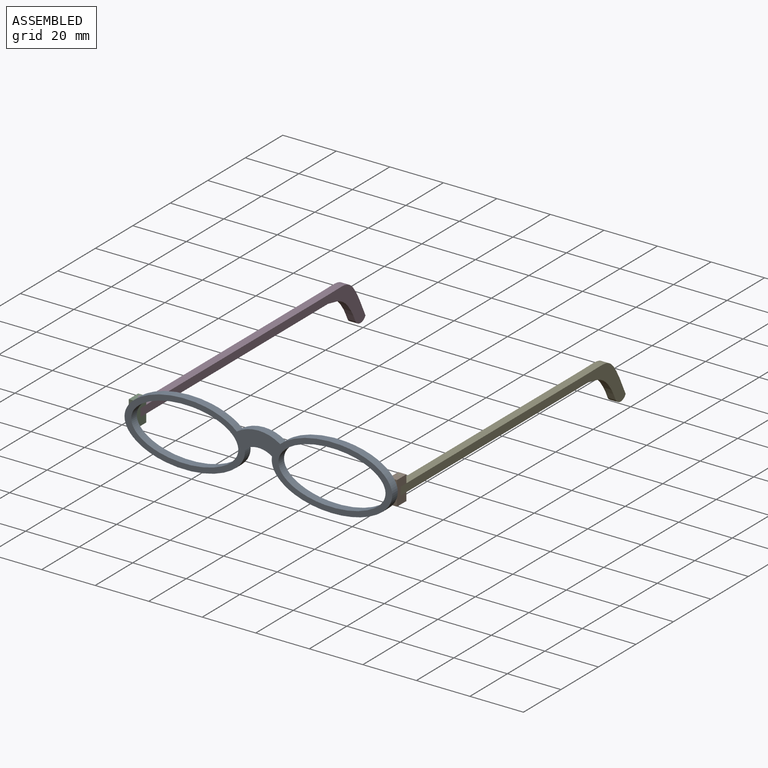
[diagram: assembled view]
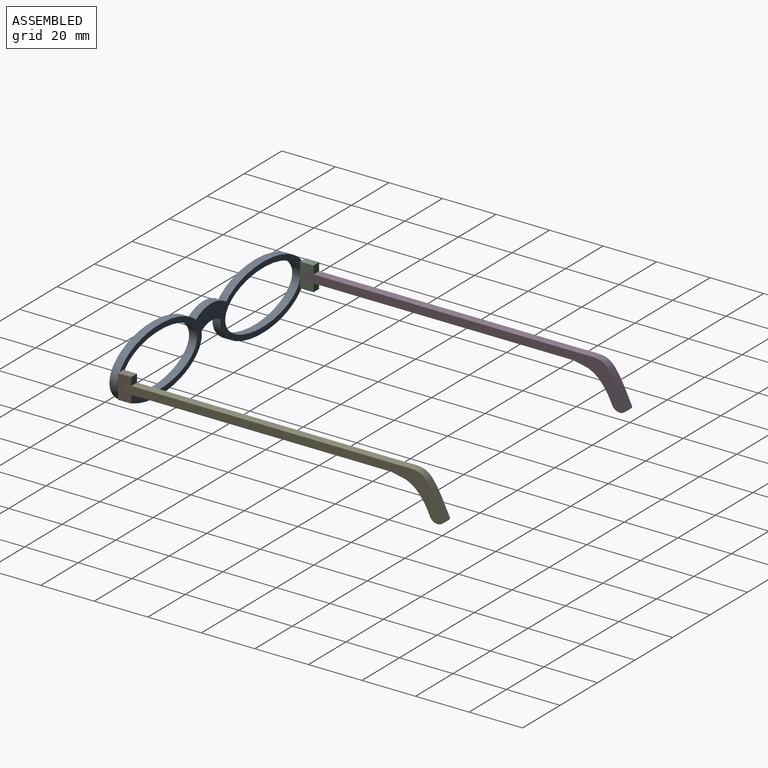
[diagram: assembled view, second angle]
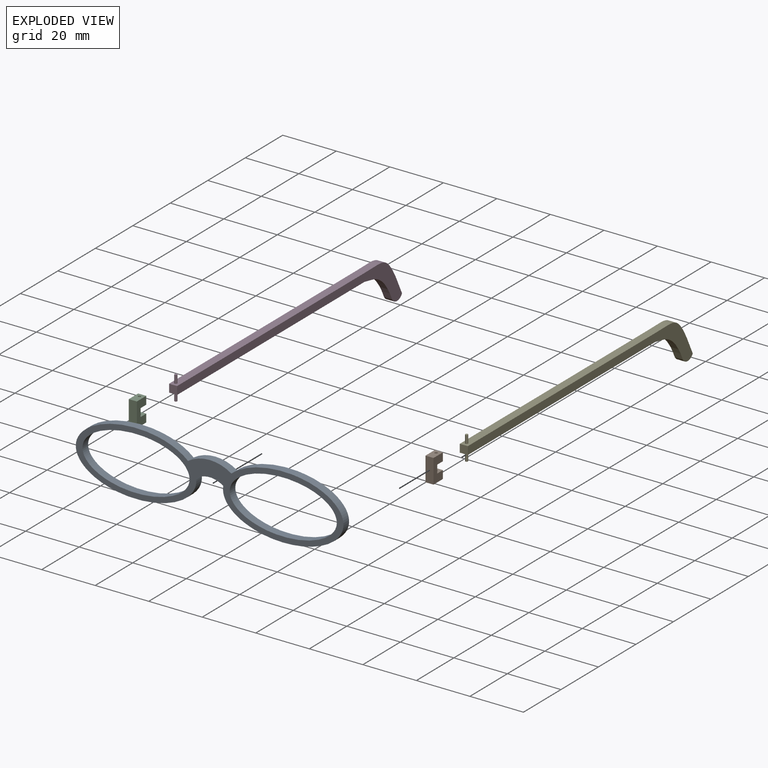
[diagram: exploded view]
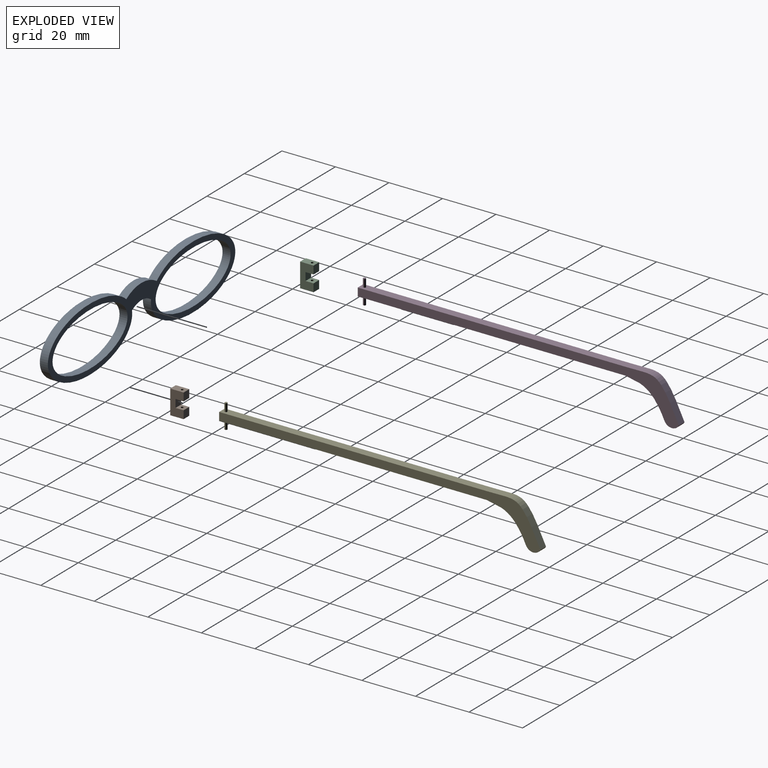
[diagram: exploded view, second angle]
ASSEMBLY  parts=5 mates=4
PART A: 8 faces, bbox 100x3x24 mm
  f0: extruded ~44.89x23.98mm, area 314.9mm2, adj f1,f5,f6,f7
  f1: cylinder r=14.62mm len=16.23mm, axis (0,1,0), area 51.6mm2, adj f0,f2,f6,f7
  f2: extruded ~44.88x23.98mm, area 314.9mm2, adj f1,f5,f6,f7
  f3: extruded ~40x20mm, area 290.7mm2, adj f6,f7
  f4: extruded ~40x20mm, area 290.7mm2, adj f6,f7
  f5: cylinder r=8.8mm len=10.19mm, axis (0,1,0), area 32.6mm2, adj f0,f2,f6,f7
  f6: plane 100x24mm, normal (0,-1,0), area 517.8mm2, adj f0,f1,f2,f3,f4,f5
  f7: plane 100x24mm, normal (0,1,0), area 517.8mm2, adj f0,f1,f2,f3,f4,f5
PART B: 12 faces, bbox 5x3x9 mm
  f0: plane 5x3mm, normal (0,0,1), area 14.2mm2, adj f1,f7,f8,f9,f10
  f1: plane 9x3mm, normal (-1,0,0), area 27mm2, adj f0,f2,f8,f9
  f2: plane 5x3mm, normal (0,0,-1), area 14.2mm2, adj f1,f3,f8,f9,f11
  f3: plane 3x3mm, normal (1,0,0), area 9mm2, adj f2,f4,f8,f9
  f4: plane 3x3mm, normal (0,0,1), area 8.2mm2, adj f3,f5,f8,f9,f11
  f5: plane 3x3mm, normal (1,0,0), area 9mm2, adj f4,f6,f8,f9
  f6: plane 3x3mm, normal (0,0,-1), area 8.2mm2, adj f5,f7,f8,f9,f10
  f7: plane 3x3mm, normal (1,0,0), area 9mm2, adj f0,f6,f8,f9
  f8: plane 9x5mm, normal (0,1,0), area 36mm2, adj f0,f1,f2,f3,f4,f5,f6,f7
  f9: plane 9x5mm, normal (0,-1,0), area 36mm2, adj f0,f1,f2,f3,f4,f5,f6,f7
  f10: cylinder r=0.5mm len=3mm, axis (0,0,1), area 9.4mm2, adj f0,f6
  f11: cylinder r=0.5mm len=3mm, axis (0,0,1), area 9.4mm2, adj f2,f4
PART C: same geometry as B
PART D: 12 faces, bbox 120x3x19.1 mm
  f0: extruded ~20x14.59mm, area 83.6mm2, adj f1,f5,f6,f7
  f1: plane 100x3mm, normal (0,0,1), area 299.2mm2, adj f0,f2,f6,f7,f8
  f2: plane 3x3mm, normal (-1,0,0), area 9mm2, adj f1,f3,f6,f7
  f3: plane 100x3mm, normal (0,0,-1), area 299.2mm2, adj f2,f4,f6,f7,f10
  f4: extruded ~14.6x11.36mm, area 59.1mm2, adj f3,f5,f6,f7
  f5: cylinder r=3.04mm len=5.4mm, axis (0,1,0), area 19.9mm2, adj f0,f4,f6,f7
  f6: plane 120x16.53mm, normal (0,-1,0), area 417.7mm2, adj f0,f1,f2,f3,f4,f5
  f7: plane 120x16.53mm, normal (0,1,0), area 417.7mm2, adj f0,f1,f2,f3,f4,f5
  f8: cylinder r=0.5mm len=3mm, axis (0,0,1), area 9.4mm2, adj f1,f9
  f9: plane 1x1mm, normal (0,0,1), area 0.8mm2, adj f8
  f10: cylinder r=0.5mm len=3mm, axis (0,0,-1), area 9.4mm2, adj f3,f11
  f11: plane 1x1mm, normal (0,0,-1), area 0.8mm2, adj f10
PART E: same geometry as D
PLACE A t=(-11.34,-2.31,8.46)mm
PLACE B rot(axis=(0,0,1),90deg) t=(38.36,-12.84,-25.12)mm
PLACE C rot(axis=(0,0,1),90deg) t=(-58.84,-12.84,-24.6)mm
PLACE D rot(axis=(0,0,1),90deg) t=(-61.84,58.95,58.57)mm
PLACE E rot(axis=(0,0,1),90deg) t=(35.36,58.95,58.05)mm
MATE planar C.f1 <-> A.f7  axis (0,-1,0) through (-60.34,-2.31,8.46)mm
MATE planar B.f1 <-> A.f7  axis (0,-1,0) through (36.86,-2.31,7.93)mm
MATE revolute D.f2 <-> C.f5  axis (0,-1,0) through (-60.34,-0.31,8.46)mm
MATE revolute E.f2 <-> B.f5  axis (0,-1,0) through (36.86,-0.31,7.93)mm
